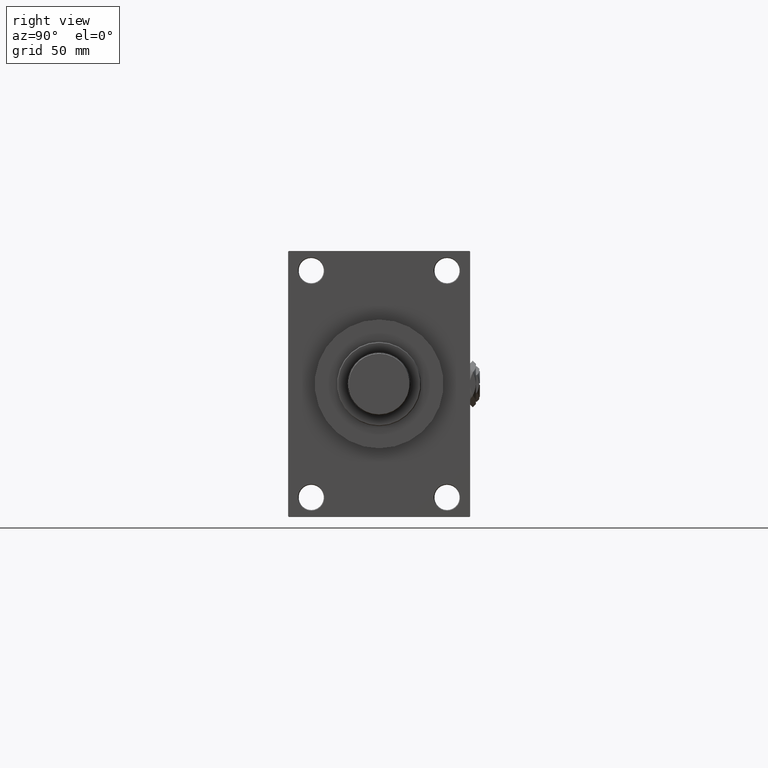
[diagram: clean part render]
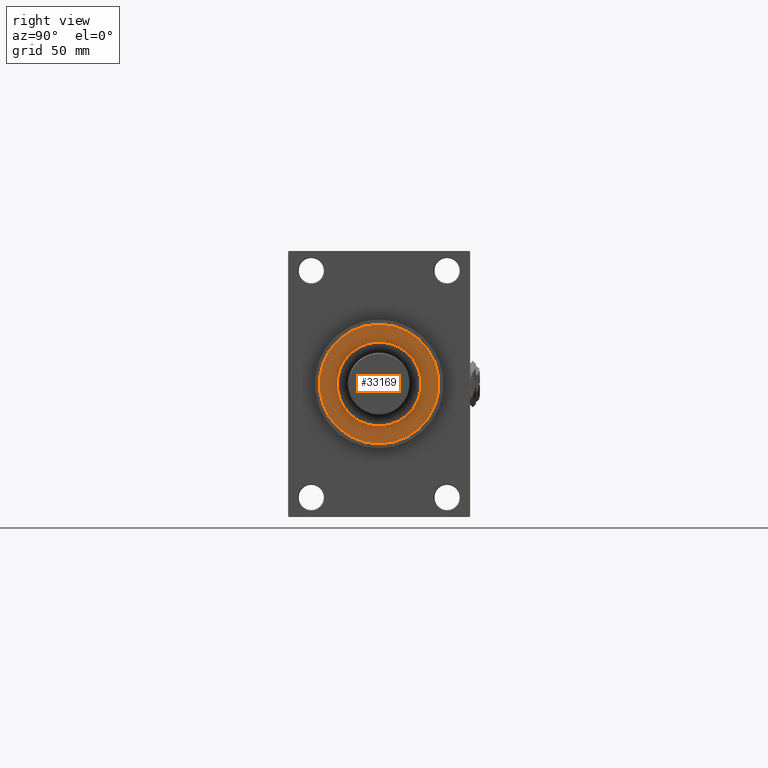
[diagram: same view with one face highlighted and labeled with its STEP entity id]
A machine part, right view. The second image highlights one B-rep face of the part: STEP entity #33169.
In plain terms, the highlighted planar face has unit normal (1, -0, -0).
Its self-contained STEP definition (entity closure, byte-faithful):
#1423 = CIRCLE ( 'NONE', #1538, 30.00000000000000000 ) ;
#1538 = AXIS2_PLACEMENT_3D ( 'NONE', #32336, #16568, #12992 ) ;
#2205 = DIRECTION ( 'NONE',  ( 1.000000000000000000, 0.000000000000000000, 0.000000000000000000 ) ) ;
#3063 = AXIS2_PLACEMENT_3D ( 'NONE', #10062, #41114, #6264 ) ;
#5173 = ORIENTED_EDGE ( 'NONE', *, *, #30617, .F. ) ;
#6264 = DIRECTION ( 'NONE',  ( 1.000000000000000000, 0.000000000000000000, 0.000000000000000000 ) ) ;
#6860 = DIRECTION ( 'NONE',  ( 0.000000000000000000, 0.000000000000000000, 1.000000000000000000 ) ) ;
#7031 = EDGE_LOOP ( 'NONE', ( #5173, #38549 ) ) ;
#8531 = EDGE_LOOP ( 'NONE', ( #11019, #22267 ) ) ;
#10062 = CARTESIAN_POINT ( 'NONE',  ( 0.000000000000000000, 0.000000000000000000, 43.25999999999999801 ) ) ;
#10418 = CARTESIAN_POINT ( 'NONE',  ( 30.00000000000000000, 3.673940397442059178E-15, 43.25999999999999801 ) ) ;
#10448 = CARTESIAN_POINT ( 'NONE',  ( -42.75000000000000000, 0.000000000000000000, 43.25999999999999801 ) ) ;
#11019 = ORIENTED_EDGE ( 'NONE', *, *, #17784, .T. ) ;
#11229 = AXIS2_PLACEMENT_3D ( 'NONE', #29987, #6860, #22370 ) ;
#11890 = AXIS2_PLACEMENT_3D ( 'NONE', #25570, #40586, #2205 ) ;
#12992 = DIRECTION ( 'NONE',  ( 1.000000000000000000, 0.000000000000000000, 0.000000000000000000 ) ) ;
#13111 = CARTESIAN_POINT ( 'NONE',  ( 42.75000000000000000, 5.235365066354935472E-15, 43.25999999999999801 ) ) ;
#14146 = VERTEX_POINT ( 'NONE', #10418 ) ;
#16568 = DIRECTION ( 'NONE',  ( 0.000000000000000000, 0.000000000000000000, 1.000000000000000000 ) ) ;
#17784 = EDGE_CURVE ( 'NONE', #43451, #26420, #33659, .T. ) ;
#22267 = ORIENTED_EDGE ( 'NONE', *, *, #25925, .T. ) ;
#22370 = DIRECTION ( 'NONE',  ( 1.000000000000000000, 0.000000000000000000, -0.000000000000000000 ) ) ;
#22465 = CIRCLE ( 'NONE', #11890, 42.75000000000000000 ) ;
#22615 = FACE_OUTER_BOUND ( 'NONE', #8531, .T. ) ;
#23220 = DIRECTION ( 'NONE',  ( 0.000000000000000000, 0.000000000000000000, 1.000000000000000000 ) ) ;
#24458 = CARTESIAN_POINT ( 'NONE',  ( -30.00000000000000000, 0.000000000000000000, 43.25999999999999801 ) ) ;
#25570 = CARTESIAN_POINT ( 'NONE',  ( 0.000000000000000000, 0.000000000000000000, 43.25999999999999801 ) ) ;
#25683 = FACE_BOUND ( 'NONE', #7031, .T. ) ;
#25925 = EDGE_CURVE ( 'NONE', #26420, #43451, #22465, .T. ) ;
#26271 = DIRECTION ( 'NONE',  ( 1.000000000000000000, 0.000000000000000000, 0.000000000000000000 ) ) ;
#26420 = VERTEX_POINT ( 'NONE', #13111 ) ;
#27042 = VERTEX_POINT ( 'NONE', #24458 ) ;
#27642 = EDGE_CURVE ( 'NONE', #14146, #27042, #47685, .T. ) ;
#29987 = CARTESIAN_POINT ( 'NONE',  ( 0.000000000000000000, 0.000000000000000000, 43.25999999999999801 ) ) ;
#30617 = EDGE_CURVE ( 'NONE', #27042, #14146, #1423, .T. ) ;
#31344 = CARTESIAN_POINT ( 'NONE',  ( 0.000000000000000000, 0.000000000000000000, 43.25999999999999801 ) ) ;
#32336 = CARTESIAN_POINT ( 'NONE',  ( 0.000000000000000000, 0.000000000000000000, 43.25999999999999801 ) ) ;
#33169 = ADVANCED_FACE ( 'NONE', ( #25683, #22615 ), #46013, .T. ) ;
#33659 = CIRCLE ( 'NONE', #37606, 42.75000000000000000 ) ;
#37606 = AXIS2_PLACEMENT_3D ( 'NONE', #31344, #23220, #26271 ) ;
#38549 = ORIENTED_EDGE ( 'NONE', *, *, #27642, .F. ) ;
#40586 = DIRECTION ( 'NONE',  ( 0.000000000000000000, 0.000000000000000000, 1.000000000000000000 ) ) ;
#41114 = DIRECTION ( 'NONE',  ( 0.000000000000000000, 0.000000000000000000, 1.000000000000000000 ) ) ;
#43451 = VERTEX_POINT ( 'NONE', #10448 ) ;
#46013 = PLANE ( 'NONE',  #11229 ) ;
#47685 = CIRCLE ( 'NONE', #3063, 30.00000000000000000 ) ;